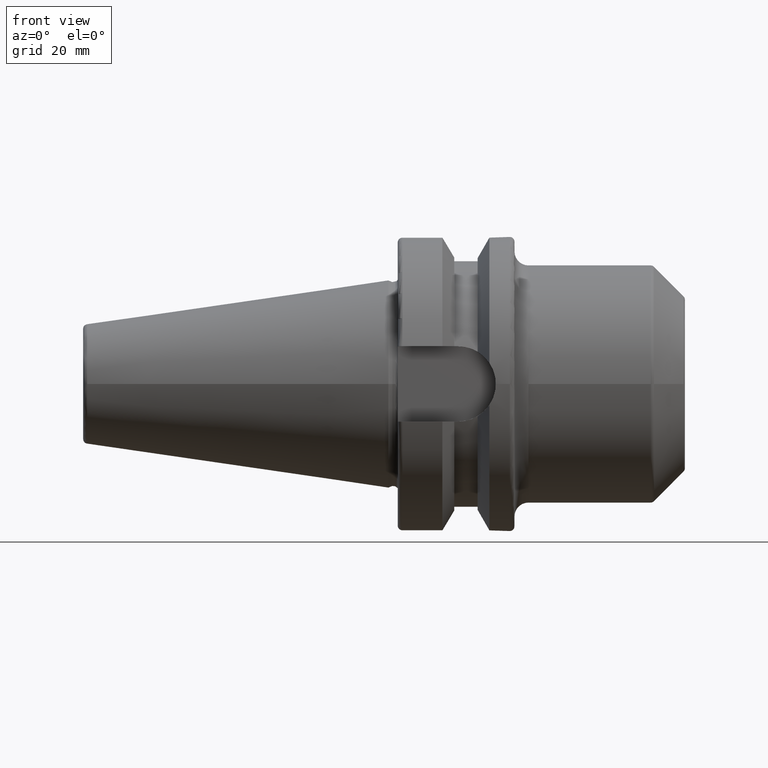
[diagram: clean part render]
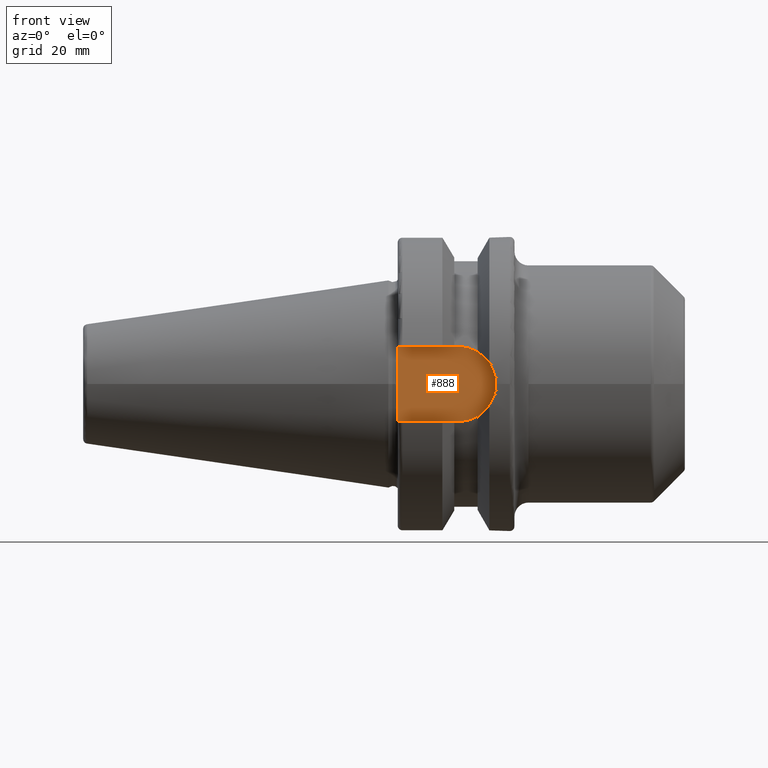
[diagram: same view with one face highlighted and labeled with its STEP entity id]
A machine part, front view. The second image highlights one B-rep face of the part: STEP entity #888.
In plain terms, the highlighted planar face has unit normal (0, 1, 0).
Its self-contained STEP definition (entity closure, byte-faithful):
#65=LINE('',#1597,#111);
#67=LINE('',#1602,#113);
#71=LINE('',#1624,#117);
#111=VECTOR('',#1178,10.);
#113=VECTOR('',#1182,10.);
#117=VECTOR('',#1188,10.);
#173=PLANE('',#993);
#205=FACE_OUTER_BOUND('',#266,.T.);
#266=EDGE_LOOP('',(#694,#695,#696,#697));
#329=CIRCLE('',#990,8.05);
#403=VERTEX_POINT('',#1568);
#404=VERTEX_POINT('',#1570);
#410=VERTEX_POINT('',#1595);
#412=VERTEX_POINT('',#1601);
#504=EDGE_CURVE('',#403,#404,#329,.T.);
#512=EDGE_CURVE('',#410,#403,#65,.T.);
#514=EDGE_CURVE('',#404,#412,#67,.T.);
#520=EDGE_CURVE('',#412,#410,#71,.T.);
#694=ORIENTED_EDGE('',*,*,#514,.F.);
#695=ORIENTED_EDGE('',*,*,#504,.F.);
#696=ORIENTED_EDGE('',*,*,#512,.F.);
#697=ORIENTED_EDGE('',*,*,#520,.F.);
#888=ADVANCED_FACE('',(#205),#173,.F.);
#990=AXIS2_PLACEMENT_3D('',#1571,#1169,#1170);
#993=AXIS2_PLACEMENT_3D('',#1623,#1186,#1187);
#1169=DIRECTION('center_axis',(0.,1.,0.));
#1170=DIRECTION('ref_axis',(0.,0.,1.));
#1178=DIRECTION('',(1.,0.,8.57315076930623E-17));
#1182=DIRECTION('',(-1.,0.,-8.57315076930623E-17));
#1186=DIRECTION('center_axis',(0.,1.,0.));
#1187=DIRECTION('ref_axis',(0.,0.,1.));
#1188=DIRECTION('',(0.,0.,1.));
#1568=CARTESIAN_POINT('',(14.95,-22.6,8.05));
#1570=CARTESIAN_POINT('',(14.95,-22.6,-8.05));
#1571=CARTESIAN_POINT('Origin',(14.95,-22.6,0.));
#1595=CARTESIAN_POINT('',(1.99999999999999,-22.6,8.05));
#1597=CARTESIAN_POINT('',(1.99999999999999,-22.6,8.05));
#1601=CARTESIAN_POINT('',(1.99999999999999,-22.6,-8.05));
#1602=CARTESIAN_POINT('',(14.95,-22.6,-8.05));
#1623=CARTESIAN_POINT('Origin',(12.5,-22.6,0.));
#1624=CARTESIAN_POINT('',(1.99999999999999,-22.6,0.));